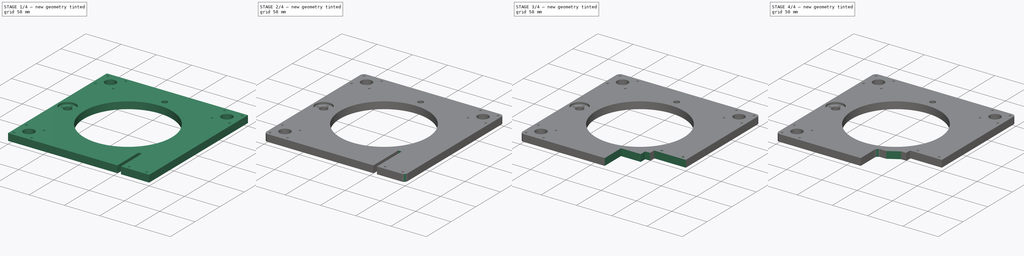
[diagram: build sequence overview — one tinted view per stage of 4, left to right]
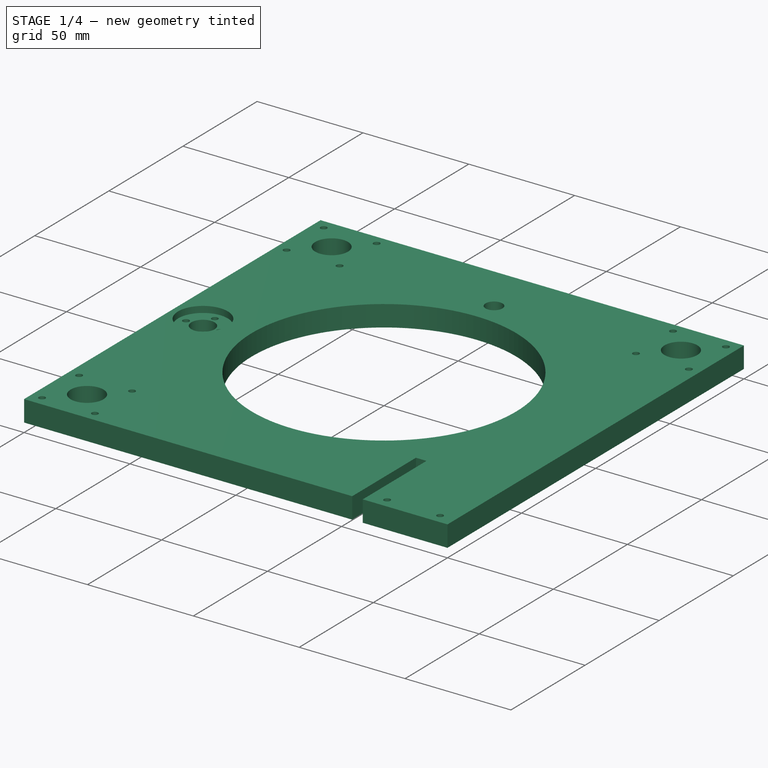
[diagram: stage 1 of 4 — iso view after this stage's code; geometry added in this stage tinted green]
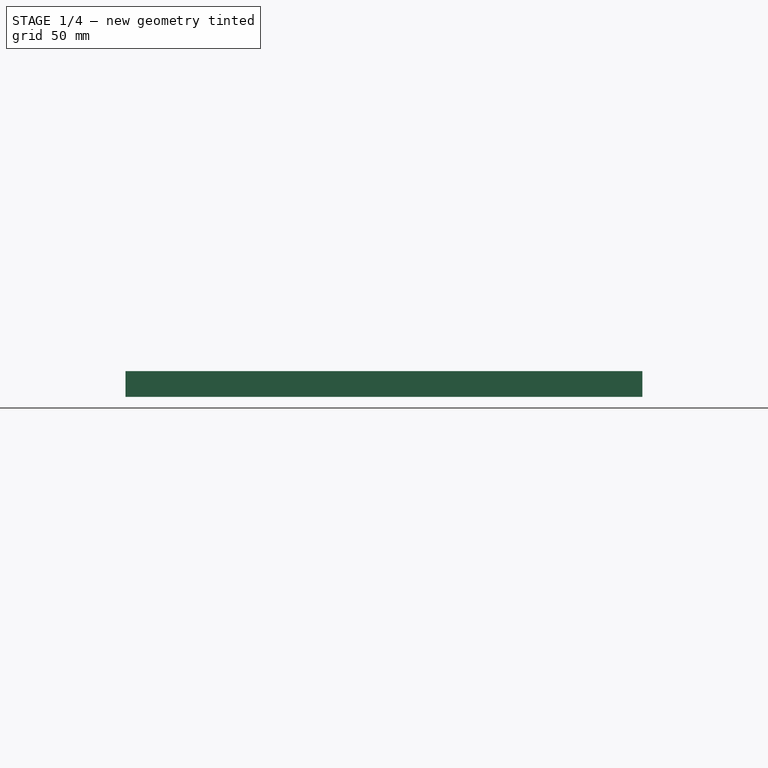
[diagram: stage 1 of 4 — front view after this stage's code; geometry added in this stage tinted green]
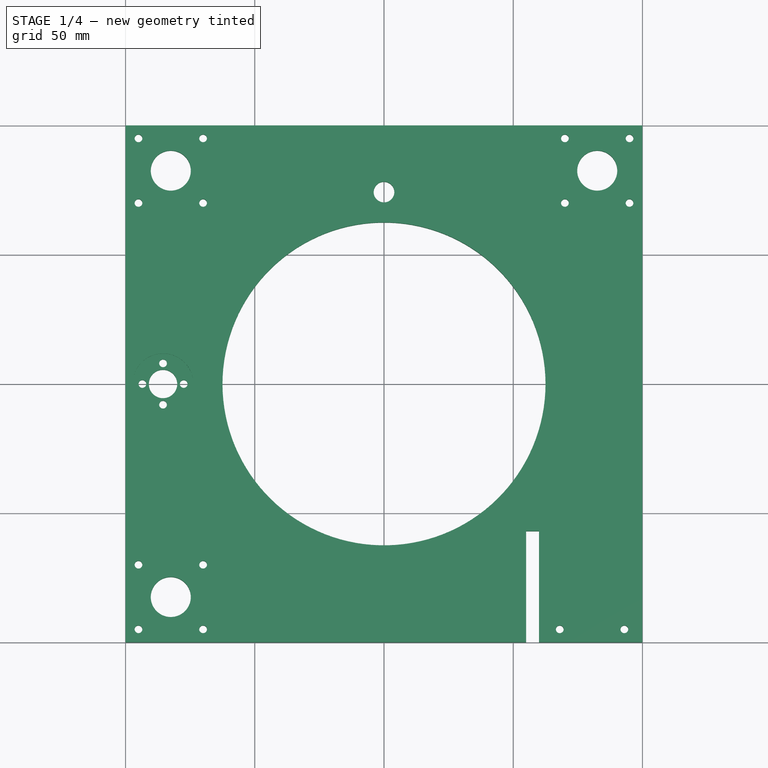
[diagram: stage 1 of 4 — top view after this stage's code; geometry added in this stage tinted green]
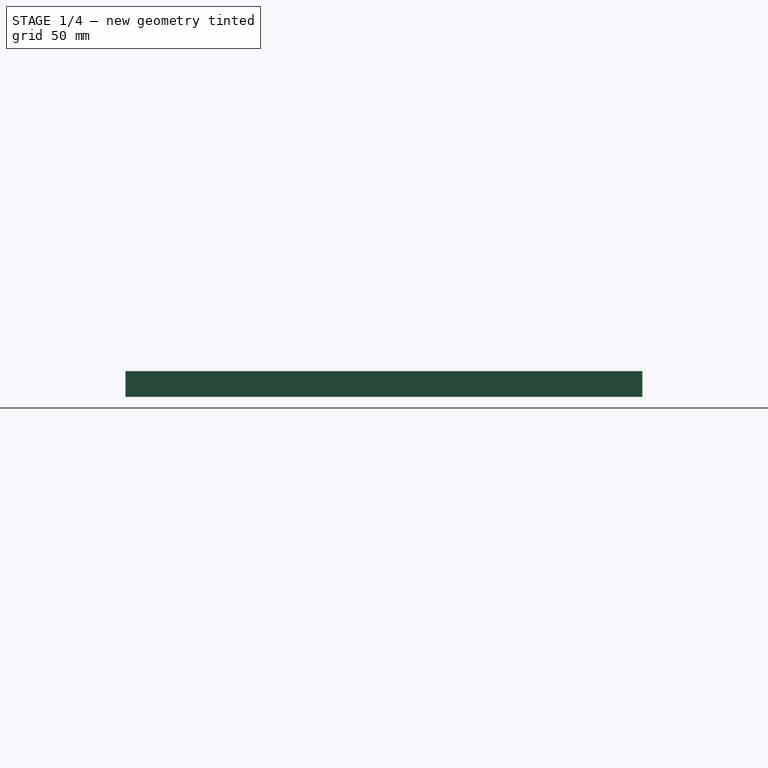
[diagram: stage 1 of 4 — right view after this stage's code; geometry added in this stage tinted green]
FCSTD DOCUMENT  (FreeCAD 1.0R39109 (Git))
Label: bass_on_motor
License: All rights reserved
LicenseURL: https://en.wikipedia.org/wiki/All_rights_reserved
objects: PartDesign::Pocket×5, Sketcher::SketchObject×4, PartDesign::Fillet×2, PartDesign::Pad×1, PartDesign::Chamfer×1, PartDesign::Body×1
note: 36 computed .brp shape members not serialized (recipe doc carries the construction recipe); baked Part::Feature solids carry a one-line shape summary decoded from their .brp

FEATURE [Sketcher::SketchObject] Sketch
  ArcFitTolerance = 1e-06
  AttachmentSupport = -> [XY_Plane]
  FullyConstrained = true
  MakeInternals = false
  MapMode = 5
  sketch-geometry (50):
    g0: LineSegment StartX=-100 StartY=100.02 StartZ=0 EndX=-100 EndY=-99.98 EndZ=0
    g1: LineSegment StartX=-100 StartY=-99.98 StartZ=0 EndX=55 EndY=-99.98 EndZ=0
    g2: LineSegment StartX=100 StartY=-99.98 StartZ=0 EndX=100 EndY=100.02 EndZ=0
    g3: LineSegment StartX=100 StartY=100.02 StartZ=0 EndX=-100 EndY=100.02 EndZ=0
    g4: Circle CenterX=0 CenterY=0 CenterZ=0 NormalX=0 NormalY=0 NormalZ=1 AngleXU=0 Radius=62.5
    g5: LineSegment [constr] StartX=17 StartY=-94.23 StartZ=0 EndX=17 EndY=-62.73 EndZ=0
    g6: LineSegment StartX=60 StartY=-56.98 StartZ=0 EndX=60 EndY=-99.98 EndZ=0
    g7: Circle CenterX=-82.5 CenterY=-82.48 CenterZ=0 NormalX=0 NormalY=0 NormalZ=1 AngleXU=0 Radius=7.75
    g8: LineSegment [constr] StartX=-95 StartY=-69.98 StartZ=0 EndX=-95 EndY=-94.98 EndZ=0
    g9: LineSegment [constr] StartX=-95 StartY=-94.98 StartZ=0 EndX=-70 EndY=-94.98 EndZ=0
    g10: LineSegment [constr] StartX=-70 StartY=-94.98 StartZ=0 EndX=-70 EndY=-69.98 EndZ=0
    g11: LineSegment [constr] StartX=-70 StartY=-69.98 StartZ=0 EndX=-95 EndY=-69.98 EndZ=0
    g12: Circle CenterX=-95 CenterY=-94.98 CenterZ=0 NormalX=0 NormalY=0 NormalZ=1 AngleXU=0 Radius=1.5
    g13: Circle CenterX=-95 CenterY=-69.98 CenterZ=0 NormalX=0 NormalY=0 NormalZ=1 AngleXU=0 Radius=1.5
    g14: Circle CenterX=-70 CenterY=-69.98 CenterZ=0 NormalX=0 NormalY=0 NormalZ=1 AngleXU=0 Radius=1.5
    g15: Circle CenterX=-70 CenterY=-94.98 CenterZ=0 NormalX=0 NormalY=0 NormalZ=1 AngleXU=0 Radius=1.5
    g16: LineSegment [constr] StartX=-95 StartY=95.02 StartZ=0 EndX=-95 EndY=70.02 EndZ=0
    g17: LineSegment [constr] StartX=-95 StartY=70.02 StartZ=0 EndX=-70 EndY=70.02 EndZ=0
    g18: LineSegment [constr] StartX=-70 StartY=70.02 StartZ=0 EndX=-70 EndY=95.02 EndZ=0
    g19: LineSegment [constr] StartX=-70 StartY=95.02 StartZ=0 EndX=-95 EndY=95.02 EndZ=0
    g20: Circle CenterX=-95 CenterY=95.02 CenterZ=0 NormalX=0 NormalY=0 NormalZ=1 AngleXU=0 Radius=1.5
    g21: Circle CenterX=-70 CenterY=95.02 CenterZ=0 NormalX=0 NormalY=0 NormalZ=1 AngleXU=0 Radius=1.5
    g22: Circle CenterX=-70 CenterY=70.02 CenterZ=0 NormalX=0 NormalY=0 NormalZ=1 AngleXU=0 Radius=1.5
    g23: Circle CenterX=-95 CenterY=70.02 CenterZ=0 NormalX=0 NormalY=0 NormalZ=1 AngleXU=0 Radius=1.5
    g24: Circle CenterX=-82.5 CenterY=82.52 CenterZ=0 NormalX=0 NormalY=0 NormalZ=1 AngleXU=0 Radius=7.75
    g25: LineSegment [constr] StartX=70 StartY=95.02 StartZ=0 EndX=70 EndY=70.02 EndZ=0
    g26: LineSegment [constr] StartX=70 StartY=70.02 StartZ=0 EndX=95 EndY=70.02 EndZ=0
    g27: LineSegment [constr] StartX=95 StartY=70.02 StartZ=0 EndX=95 EndY=95.02 EndZ=0
    g28: LineSegment [constr] StartX=95 StartY=95.02 StartZ=0 EndX=70 EndY=95.02 EndZ=0
    g29: Circle CenterX=82.5 CenterY=82.52 CenterZ=0 NormalX=0 NormalY=0 NormalZ=1 AngleXU=0 Radius=7.75
    g30: Circle CenterX=70 CenterY=95.02 CenterZ=0 NormalX=0 NormalY=0 NormalZ=1 AngleXU=0 Radius=1.5
    g31: Circle CenterX=95 CenterY=95.02 CenterZ=0 NormalX=0 NormalY=0 NormalZ=1 AngleXU=0 Radius=1.5
    g32: Circle CenterX=95 CenterY=70.02 CenterZ=0 NormalX=0 NormalY=0 NormalZ=1 AngleXU=0 Radius=1.5
    g33: Circle CenterX=70 CenterY=70.02 CenterZ=0 NormalX=0 NormalY=0 NormalZ=1 AngleXU=0 Radius=1.5
    g34: LineSegment StartX=55 StartY=-56.98 StartZ=0 EndX=55 EndY=-99.98 EndZ=0
    g35: LineSegment StartX=55 StartY=-56.98 StartZ=0 EndX=60 EndY=-56.98 EndZ=0
    g36: LineSegment StartX=60 StartY=-99.98 StartZ=0 EndX=100 EndY=-99.98 EndZ=0
    g37: Circle CenterX=-85.5 CenterY=-8e-15 CenterZ=0 NormalX=0 NormalY=0 NormalZ=1 AngleXU=0 Radius=5.5
    g38: LineSegment [constr] StartX=-107 StartY=21.5 StartZ=0 EndX=-107 EndY=-21.5 EndZ=0
    g39: LineSegment [constr] StartX=-107 StartY=-21.5 StartZ=0 EndX=-64 EndY=-21.5 EndZ=0
    g40: LineSegment [constr] StartX=-64 StartY=-21.5 StartZ=0 EndX=-64 EndY=21.5 EndZ=0
    g41: LineSegment [constr] StartX=-64 StartY=21.5 StartZ=0 EndX=-107 EndY=21.5 EndZ=0
    g42: Circle [constr] CenterX=-85.5 CenterY=-8e-15 CenterZ=0 NormalX=0 NormalY=0 NormalZ=1 AngleXU=0 Radius=8
    g43: Circle CenterX=-85.5 CenterY=8 CenterZ=0 NormalX=0 NormalY=0 NormalZ=1 AngleXU=0 Radius=1.5
    g44: Circle CenterX=-77.5 CenterY=-8e-15 CenterZ=0 NormalX=0 NormalY=0 NormalZ=1 AngleXU=0 Radius=1.5
    g45: Circle CenterX=-85.5 CenterY=-8 CenterZ=0 NormalX=0 NormalY=0 NormalZ=1 AngleXU=0 Radius=1.5
    g46: Circle CenterX=-93.5 CenterY=-8e-15 CenterZ=0 NormalX=0 NormalY=0 NormalZ=1 AngleXU=0 Radius=1.5
    g47: Circle CenterX=0 CenterY=74.23 CenterZ=0 NormalX=0 NormalY=0 NormalZ=1 AngleXU=0 Radius=4
    g48: Circle CenterX=68 CenterY=-94.98 CenterZ=0 NormalX=0 NormalY=0 NormalZ=1 AngleXU=0 Radius=1.5
    g49: Circle CenterX=93 CenterY=-94.98 CenterZ=0 NormalX=0 NormalY=0 NormalZ=1 AngleXU=0 Radius=1.5
  constraints (133):
    c: Coincident(g0,g1)
    c: Coincident(g2,g3)
    c: Coincident(g3,g0)
    c: Vertical(g0)
    c: Vertical(g2)
    c: Horizontal(g1)
    c: Horizontal(g3)
    c: DistanceY(g2,g2) = 200
    c: Diameter(g4) = 125
    c: Coincident(g4,g-1)
    c: Distance(g5) = 31.5
    c: Vertical(g5)
    c: DistanceY(g5,g4) = 94.23
    c: Distance(g5,g-2) = 17
    c: Distance(g6) = 43
    c: Vertical(g6)
    c: DistanceY(g6,g5) = 5.75
    c: DistanceX(g-1,g6) = 60
    c: Diameter(g7) = 15.5
    c: Coincident(g8,g9)
    c: Coincident(g9,g10)
    c: Coincident(g10,g11)
    c: Coincident(g11,g8)
    c: Vertical(g8)
    c: Vertical(g10)
    c: Horizontal(g9)
    c: Horizontal(g11)
    c: Equal(g10,g9)
    c: Symmetric(g8,g9,g7)
    c: Coincident(g12,g8)
    c: Coincident(g13,g8)
    c: Coincident(g14,g10)
    c: Coincident(g15,g9)
    c: Equal(g12,g13)
    c: Equal(g13,g14)
    c: Equal(g14,g15)
    c: Diameter(g15) = 3
    c: DistanceY(g0,g8) = 5
    c: Distance(g8,g0) = 5
    c: DistanceX(g11,g11) = 25
    c: Coincident(g16,g17)
    c: Coincident(g17,g18)
    c: Coincident(g18,g19)
    c: Coincident(g19,g16)
    c: Vertical(g16)
    c: Vertical(g18)
    c: Horizontal(g17)
    c: Horizontal(g19)
    c: Coincident(g20,g16)
    c: Coincident(g21,g18)
    c: Coincident(g22,g17)
    c: Coincident(g23,g16)
    c: Equal(g20,g21)
    c: Equal(g21,g22)
    c: Equal(g22,g23)
    c: Symmetric(g16,g17,g24)
    c: Equal(g18,g17)
    c: DistanceY(g16,g0) = 5
    c: DistanceX(g0,g16) = 5
    c: DistanceX(g19,g19) = 25
    c: Equal(g23,g13)
    c: Equal(g7,g24)
    c: Coincident(g25,g26)
    c: Coincident(g26,g27)
    c: Coincident(g27,g28)
    c: Coincident(g28,g25)
    c: Vertical(g25)
    c: Vertical(g27)
    c: Horizontal(g26)
    c: Horizontal(g28)
    c: Coincident(g30,g25)
    c: Coincident(g31,g27)
    c: Coincident(g32,g26)
    c: Coincident(g33,g25)
    c: Equal(g33,g30)
    c: Equal(g30,g31)
    c: Equal(g31,g32)
    c: Symmetric(g25,g26,g29)
    c: Equal(g25,g28)
    c: Equal(g28,g19)
    c: Equal(g24,g29)
    c: Equal(g30,g21)
    c: DistanceY(g27,g2) = 5
    c: DistanceX(g27,g2) = 5
    c: Vertical(g34)
    c: Coincident(g35,g34)
    c: Coincident(g35,g6)
    c: Horizontal(g35)
    c: DistanceX(g35,g35) = 5
    c: Coincident(g1,g34)
    c: Coincident(g36,g6)
    c: Coincident(g36,g2)
    c: Horizontal(g36)
    c: Equal(g3,g0)
    c: Horizontal(g1,g6)
    c: DistanceX(g0,g-1) = 100
    c: Diameter(g37) = 11
    c: Coincident(g38,g39)
    c: Coincident(g39,g40)
    c: Coincident(g40,g41)
    c: Coincident(g41,g38)
    c: Vertical(g38)
    c: Vertical(g40)
    c: Horizontal(g39)
    c: Horizontal(g41)
    c: Equal(g39,g40)
    c: DistanceY(g40,g40) = 43
    c: Symmetric(g39,g38,g37)
    c: DistanceY(g-1,g40) = 21.5
    c: DistanceX(g40,g-1) = 64
    c: Diameter(g42) = 16
    c: Coincident(g42,g37)
    c: PointOnObject(g43,g42)
    c: PointOnObject(g44,g42)
    c: PointOnObject(g45,g42)
    c: PointOnObject(g46,g42)
    c: Horizontal(g46,g44)
    c: Horizontal(g44,g37)
    c: Vertical(g37,g43)
    c: Vertical(g43,g45)
    c: Diameter(g45) = 3
    c: Equal(g45,g44)
    c: Equal(g44,g43)
    c: Equal(g43,g46)
    c: PointOnObject(g47,g-2)
    c: DistanceY(g-1,g47) = 74.23
    c: Diameter(g47) = 8
    c: Horizontal(g48,g49)
    c: Equal(g48,g49)
    c: DistanceX(g48,g49) = 25
    c: Diameter(g49) = 3
    c: DistanceY(g2,g49) = 5
    c: DistanceX(g49,g2) = 7
FEATURE [PartDesign::Pad] Pad
  Direction = (0,0,1)
  Length = 10
  Length2 = 10
  Profile = -> Sketch
  ReferenceAxis = -> Sketch [N_Axis]
  Refine = true
  Suppressed = false
  Type = 0
FEATURE [Sketcher::SketchObject] Sketch001
  ArcFitTolerance = 1e-06
  AttachmentSupport = -> [Pad]
  FullyConstrained = true
  MakeInternals = false
  MapMode = 5
  Placement = pos=(0,0,10) rot=(0,0,1;0rad)
  sketch-geometry (2):
    g0: Circle [constr] CenterX=-85.5 CenterY=0 CenterZ=0 NormalX=0 NormalY=0 NormalZ=1 AngleXU=0 Radius=5.5
    g1: Circle CenterX=-85.5 CenterY=0 CenterZ=0 NormalX=0 NormalY=0 NormalZ=1 AngleXU=0 Radius=11.75
  constraints (5):
    c: PointOnObject(g0,g-1)
    c: Diameter(g0) = 11
    c: DistanceX(g0,g-1) = 85.5
    c: Coincident(g1,g0)
    c: Diameter(g1) = 23.5
FEATURE [PartDesign::Pocket] Pocket
  BaseFeature = -> Pad
  Direction = (0,0,-1)
  Length = 3
  Length2 = 5
  Profile = -> Sketch001
  ReferenceAxis = -> Sketch001 [N_Axis]
  Refine = true
  Suppressed = false
  Type = 0
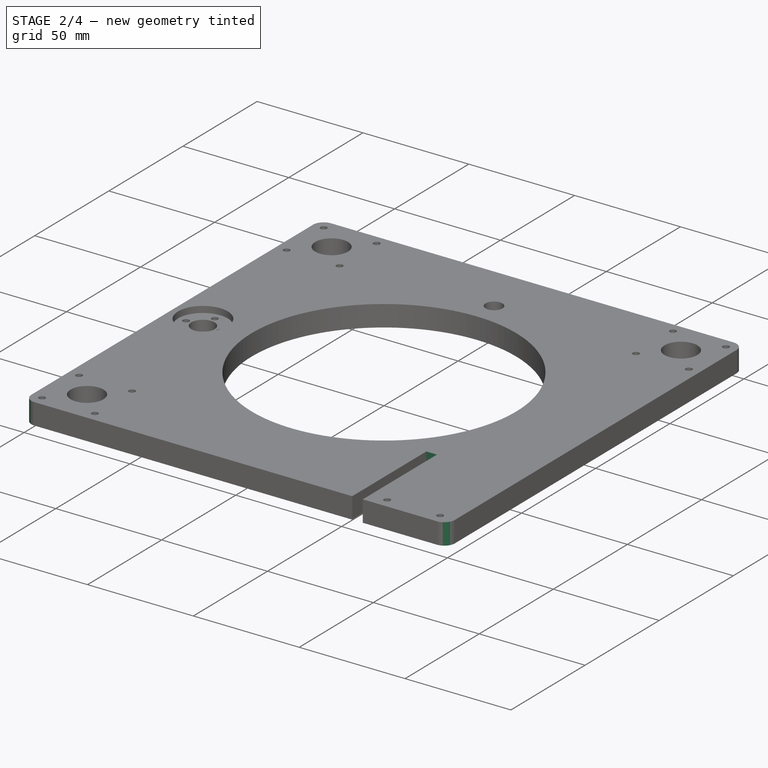
[diagram: stage 2 of 4 — iso view after this stage's code; geometry added in this stage tinted green]
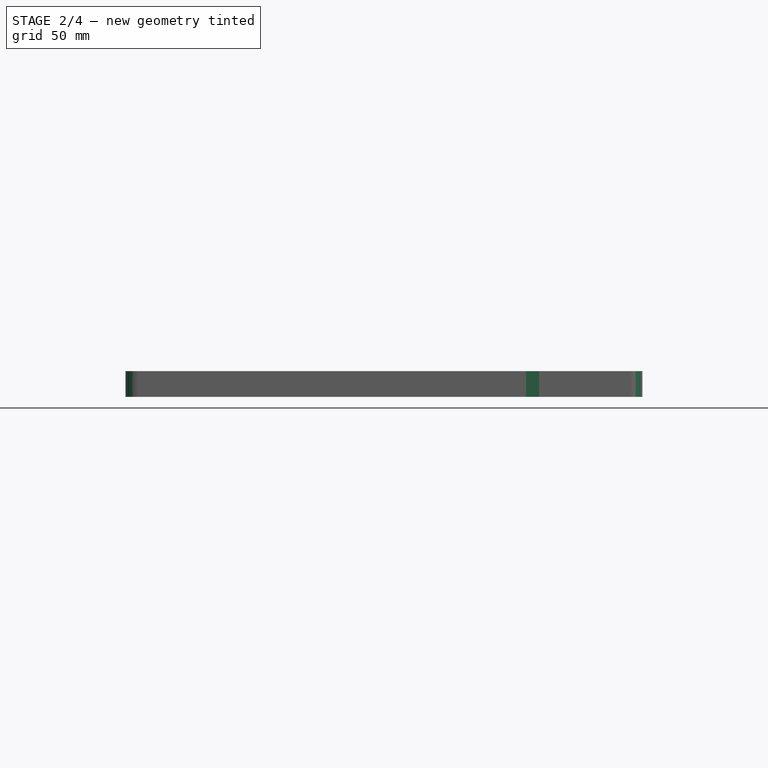
[diagram: stage 2 of 4 — front view after this stage's code; geometry added in this stage tinted green]
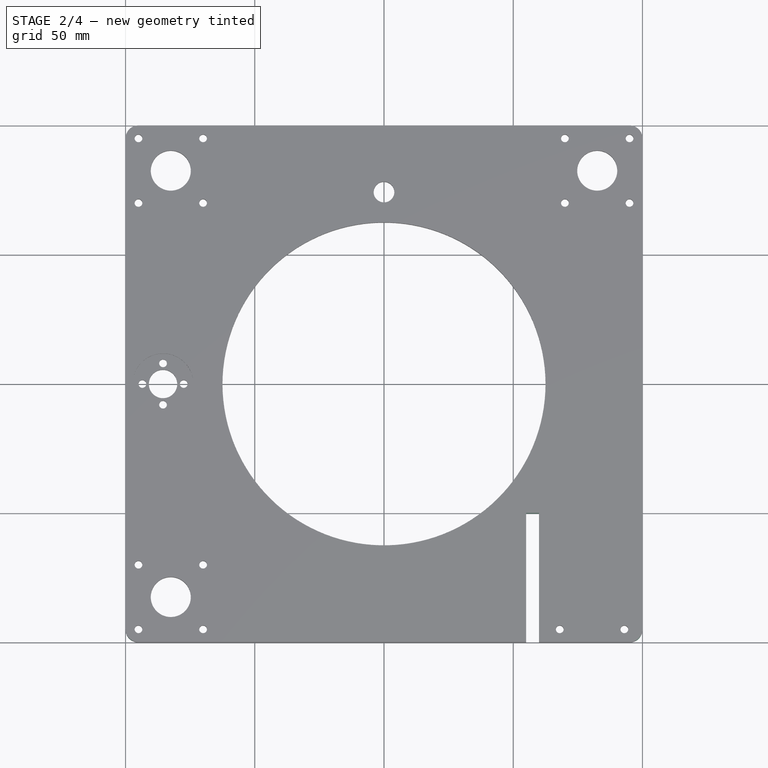
[diagram: stage 2 of 4 — top view after this stage's code; geometry added in this stage tinted green]
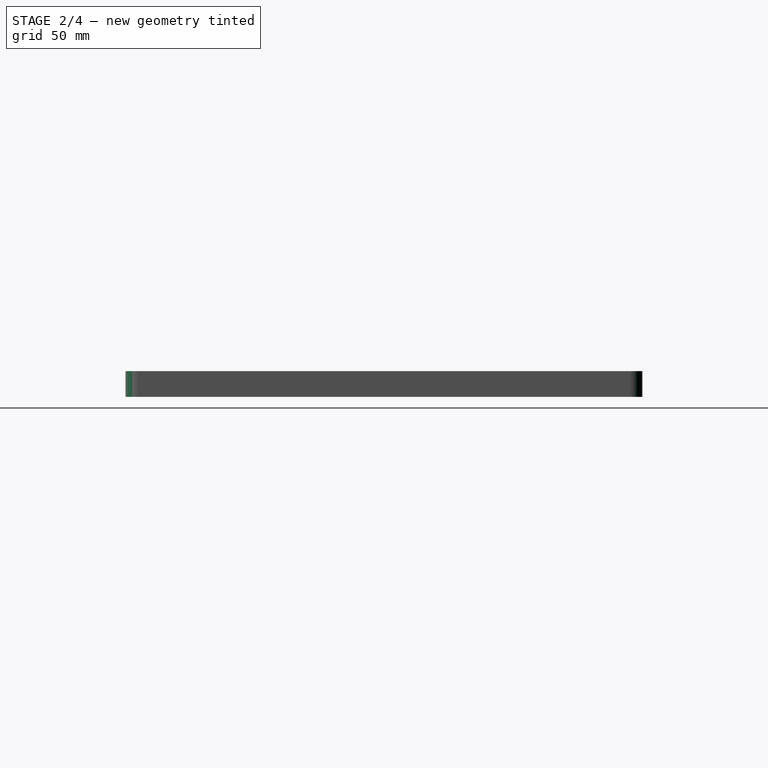
[diagram: stage 2 of 4 — right view after this stage's code; geometry added in this stage tinted green]
FEATURE [PartDesign::Fillet] Fillet
  Base = -> Pocket [Edge65,Edge68,Edge67,Edge66]
  BaseFeature = -> Pocket
  Radius = 5
  Refine = true
  SupportTransform = false
  Suppressed = false
  UseAllEdges = false
FEATURE [PartDesign::Pocket] Pocket001
  BaseFeature = -> Fillet
  Direction = (0,1,0)
  Length = 7
  Length2 = 5
  Profile = -> Fillet [Face6]
  Refine = true
  Suppressed = false
  Type = 0
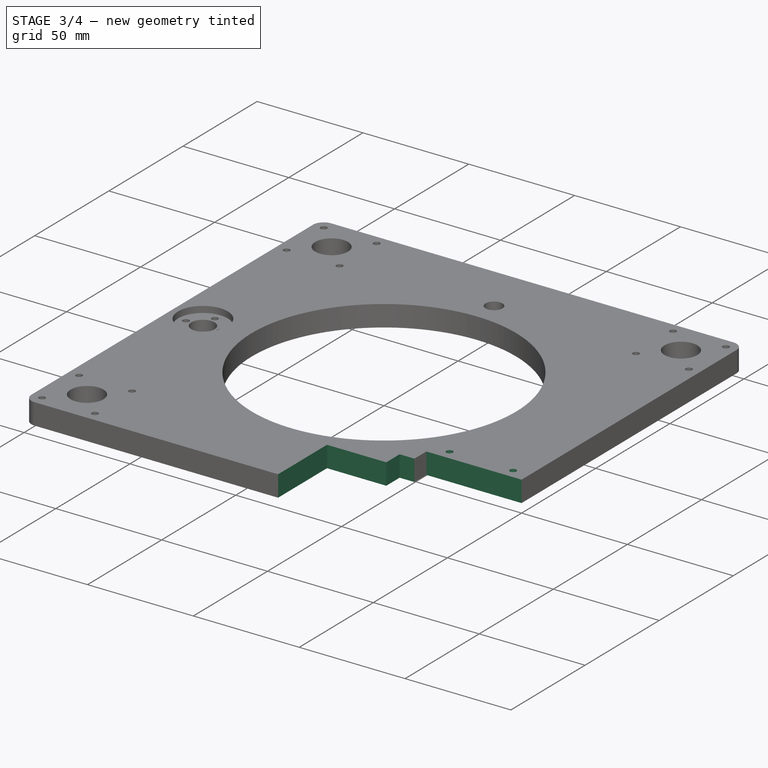
[diagram: stage 3 of 4 — iso view after this stage's code; geometry added in this stage tinted green]
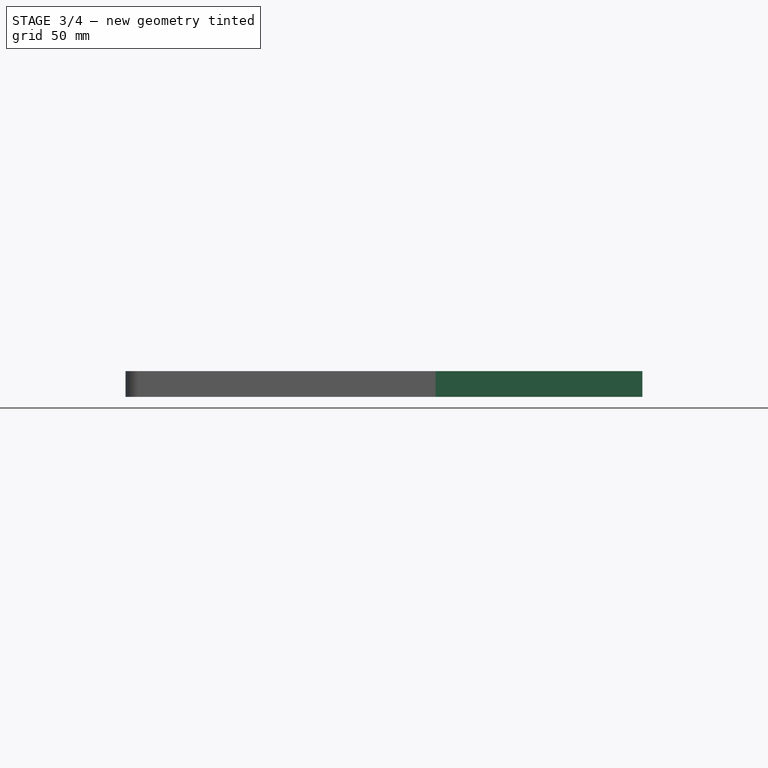
[diagram: stage 3 of 4 — front view after this stage's code; geometry added in this stage tinted green]
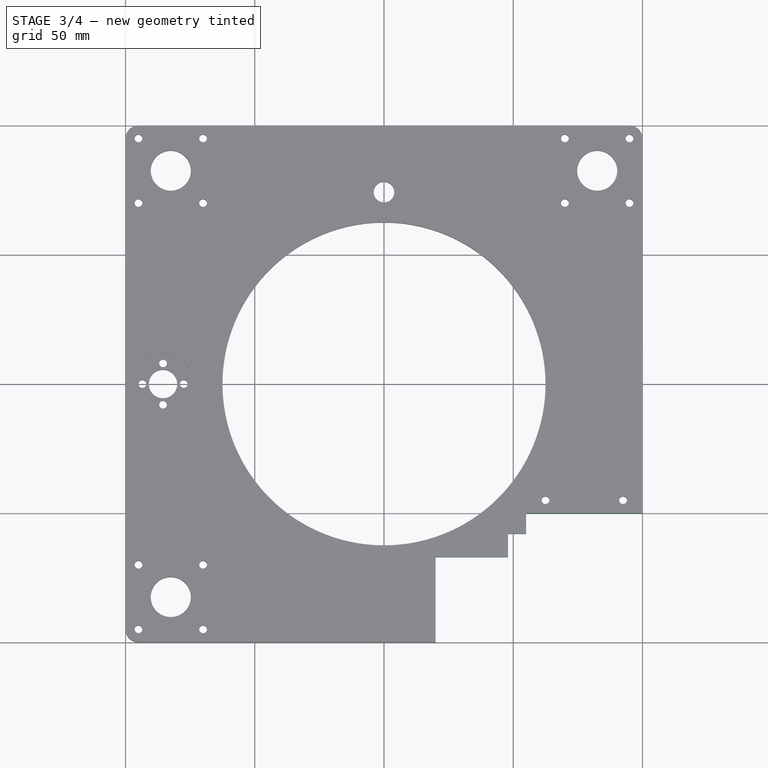
[diagram: stage 3 of 4 — top view after this stage's code; geometry added in this stage tinted green]
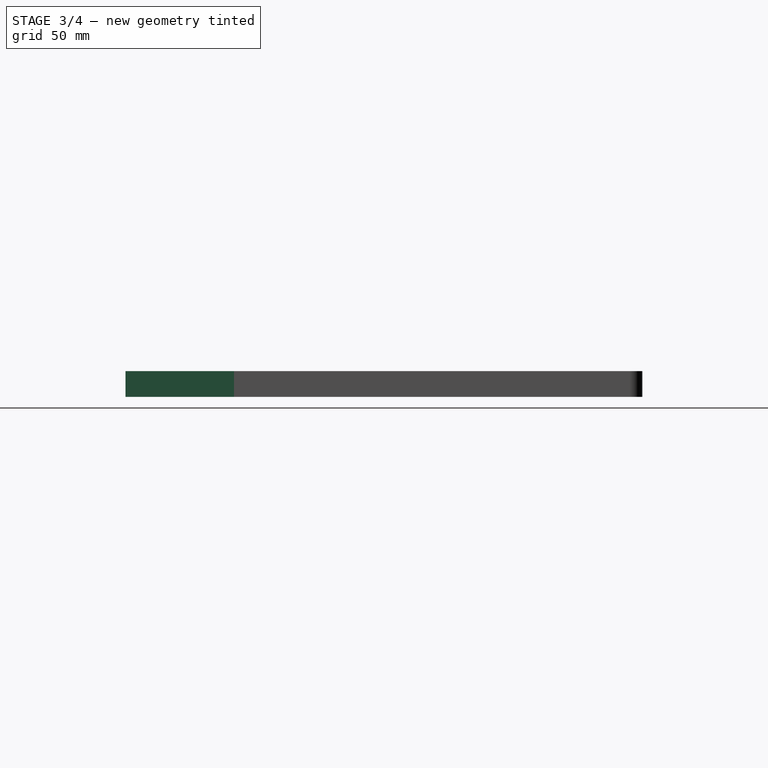
[diagram: stage 3 of 4 — right view after this stage's code; geometry added in this stage tinted green]
FEATURE [PartDesign::Pocket] Pocket002
  BaseFeature = -> Pocket001
  Direction = (1,0,0)
  Length = 5
  Length2 = 5
  Profile = -> Pocket001 [Face39]
  Refine = true
  Suppressed = false
  Type = 1
FEATURE [Sketcher::SketchObject] Sketch002
  ArcFitTolerance = 1e-06
  AttachmentSupport = -> [Pocket002]
  FullyConstrained = true
  MakeInternals = false
  MapMode = 5
  Placement = pos=(0,0,10) rot=(0,0,1;0rad)
  sketch-geometry (3):
    g0: Circle CenterX=62.5 CenterY=-45 CenterZ=0 NormalX=0 NormalY=0 NormalZ=1 AngleXU=0 Radius=1.5
    g1: Circle CenterX=92.5 CenterY=-45 CenterZ=0 NormalX=0 NormalY=0 NormalZ=1 AngleXU=0 Radius=1.5
    g2: LineSegment [constr] StartX=55 StartY=0 StartZ=0 EndX=55 EndY=-50 EndZ=0
  constraints (10):
    c: Equal(g1,g0)
    c: Horizontal(g0,g1)
    c: DistanceX(g0,g1) = 30
    c: Diameter(g0) = 3
    c: PointOnObject(g2,g-1)
    c: Vertical(g2)
    c: DistanceY(g2,g2) = 50
    c: DistanceX(g-1,g2) = 55
    c: DistanceX(g2,g0) = 7.5
    c: DistanceY(g2,g0) = 5
FEATURE [PartDesign::Pocket] Pocket003
  BaseFeature = -> Pocket002
  Direction = (0,0,-1)
  Length = 5
  Length2 = 5
  Profile = -> Sketch002
  ReferenceAxis = -> Sketch002 [N_Axis]
  Refine = true
  Suppressed = false
  Type = 1
FEATURE [Sketcher::SketchObject] Sketch003
  ArcFitTolerance = 1e-06
  AttachmentSupport = -> [Pocket003]
  FullyConstrained = true
  MakeInternals = false
  MapMode = 5
  Placement = pos=(0,0,10) rot=(0,0,1;0rad)
  sketch-geometry (10):
    g0: LineSegment StartX=55 StartY=-58 StartZ=0 EndX=48 EndY=-58 EndZ=0
    g1: LineSegment StartX=48 StartY=-58 StartZ=0 EndX=48 EndY=-67 EndZ=0
    g2: LineSegment StartX=48 StartY=-67 StartZ=0 EndX=20 EndY=-67 EndZ=0
    g3: LineSegment StartX=20 StartY=-67 StartZ=0 EndX=20 EndY=-100 EndZ=0
    g4: LineSegment StartX=20 StartY=-100 StartZ=0 EndX=55 EndY=-100 EndZ=0
    g5: LineSegment StartX=55 StartY=-100 StartZ=0 EndX=55 EndY=-58 EndZ=0
    g6: LineSegment [constr] StartX=55 StartY=-58 StartZ=0 EndX=55 EndY=-50 EndZ=0
    g7: LineSegment [constr] StartX=55 StartY=-50 StartZ=0 EndX=100 EndY=-50 EndZ=0
    g8: Circle [constr] CenterX=62.5 CenterY=-45 CenterZ=0 NormalX=0 NormalY=0 NormalZ=1 AngleXU=0 Radius=1.5
    g9: Circle [constr] CenterX=92.5 CenterY=-45 CenterZ=0 NormalX=0 NormalY=0 NormalZ=1 AngleXU=0 Radius=1.5
  constraints (30):
    c: Horizontal(g0)
    c: Coincident(g0,g1)
    c: Coincident(g1,g2)
    c: Horizontal(g2)
    c: Coincident(g2,g3)
    c: Vertical(g3)
    c: Coincident(g3,g4)
    c: Horizontal(g4)
    c: Coincident(g4,g5)
    c: Coincident(g5,g0)
    c: Vertical(g5)
    c: Vertical(g1)
    c: DistanceX(g0,g0) = 7
    c: DistanceX(g-1,g0) = 55
    c: DistanceY(g3,g3) = 33
    c: DistanceY(g5,g5) = 42
    c: DistanceY(g4,g-1) = 100
    c: Coincident(g0,g6)
    c: Vertical(g6)
    c: Coincident(g6,g7)
    c: Horizontal(g7)
    c: DistanceY(g6,g6) = 8
    c: DistanceX(g7,g7) = 45
    c: DistanceX(g2,g2) = 28
    c: Horizontal(g8,g9)
    c: DistanceX(g8,g9) = 30
    c: DistanceX(g9,g7) = 7.5
    c: Diameter(g9) = 3
    c: Equal(g8,g9)
    c: DistanceY(g7,g9) = 5
FEATURE [PartDesign::Pocket] Pocket004
  BaseFeature = -> Pocket003
  Direction = (0,0,-1)
  Length = 5
  Length2 = 5
  Profile = -> Sketch003
  ReferenceAxis = -> Sketch003 [N_Axis]
  Refine = true
  Suppressed = false
  Type = 1
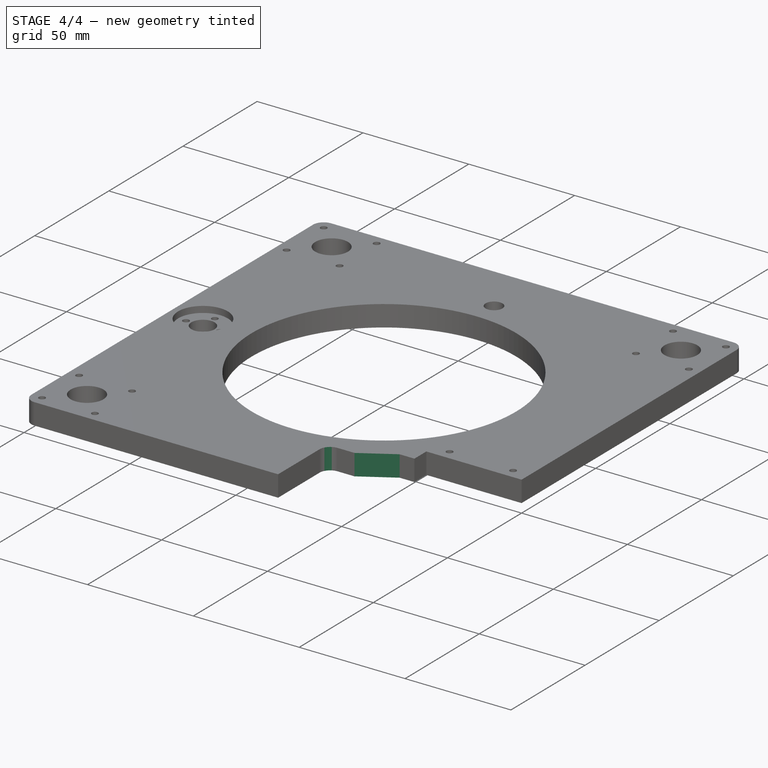
[diagram: stage 4 of 4 — iso view after this stage's code; geometry added in this stage tinted green]
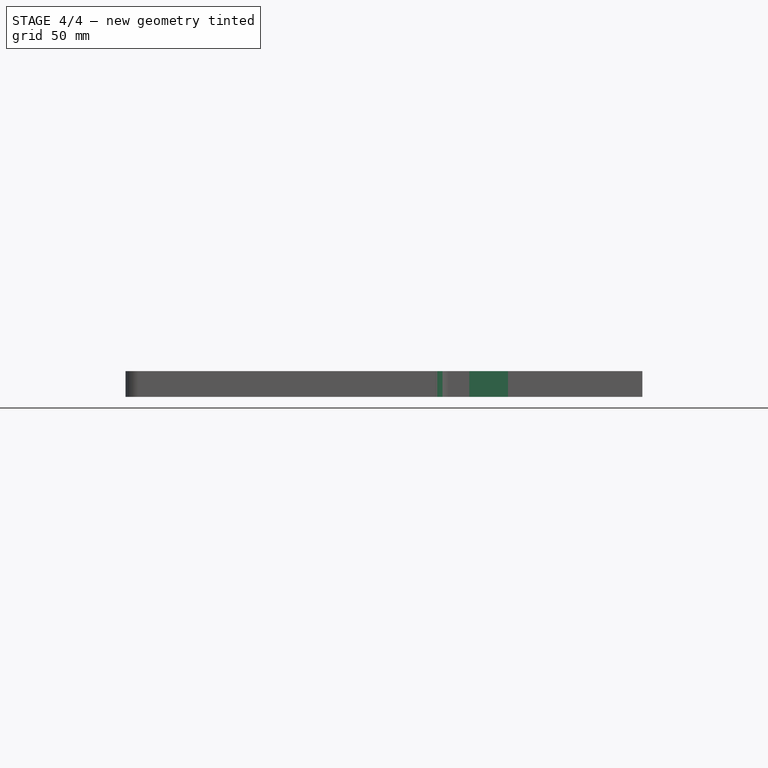
[diagram: stage 4 of 4 — front view after this stage's code; geometry added in this stage tinted green]
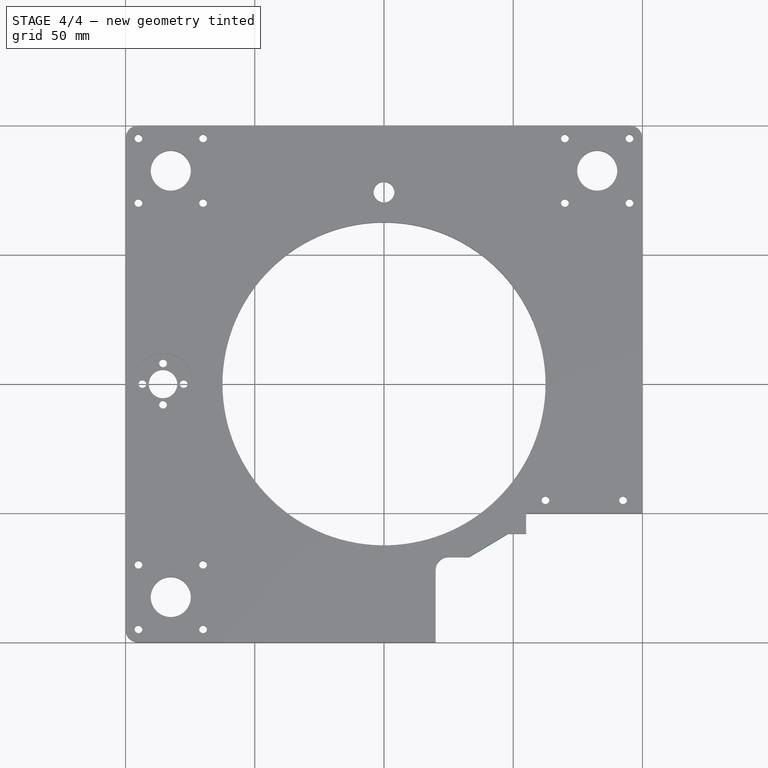
[diagram: stage 4 of 4 — top view after this stage's code; geometry added in this stage tinted green]
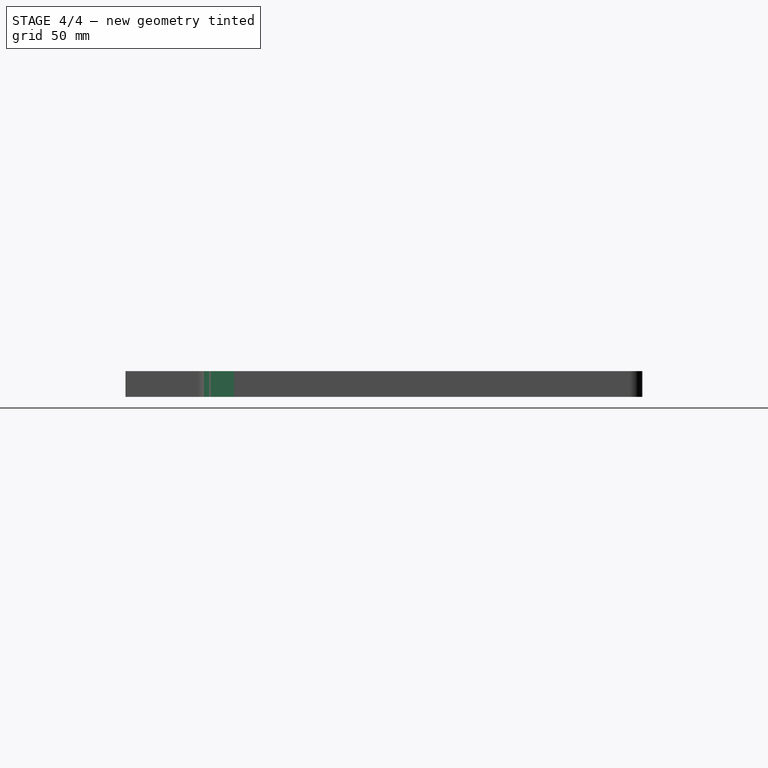
[diagram: stage 4 of 4 — right view after this stage's code; geometry added in this stage tinted green]
FEATURE [PartDesign::Chamfer] Chamfer
  Angle = 45
  Base = -> Pocket004 [Edge42]
  BaseFeature = -> Pocket004
  ChamferType = 1
  FlipDirection = false
  Refine = true
  Size = 8.99
  Size2 = 15
  SupportTransform = false
  Suppressed = false
  UseAllEdges = false
FEATURE [PartDesign::Fillet] Fillet001
  Base = -> Chamfer [Edge47]
  BaseFeature = -> Chamfer
  Radius = 5
  Refine = true
  SupportTransform = false
  Suppressed = false
  UseAllEdges = false
FEATURE [PartDesign::Body] Body
  AllowCompound = false
  Group = -> [Sketch,Pad,Sketch001,Pocket,Fillet,Pocket001,Pocket002,Sketch002,Pocket003,Sketch003,Pocket004,Chamfer,Fillet001]
  Origin = -> Origin
  Tip = -> Fillet001
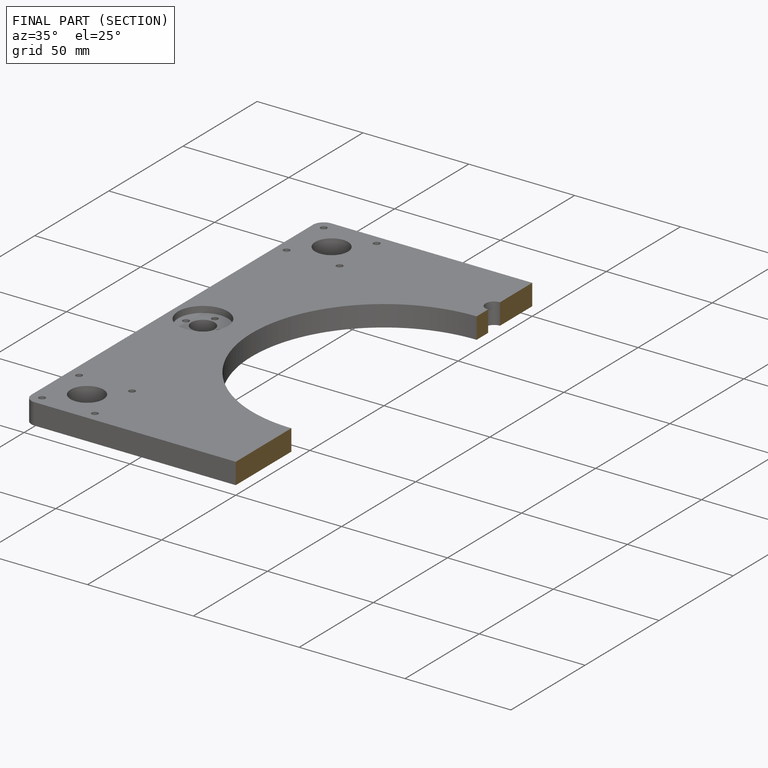
[diagram: finished part — half-section view (interior)]
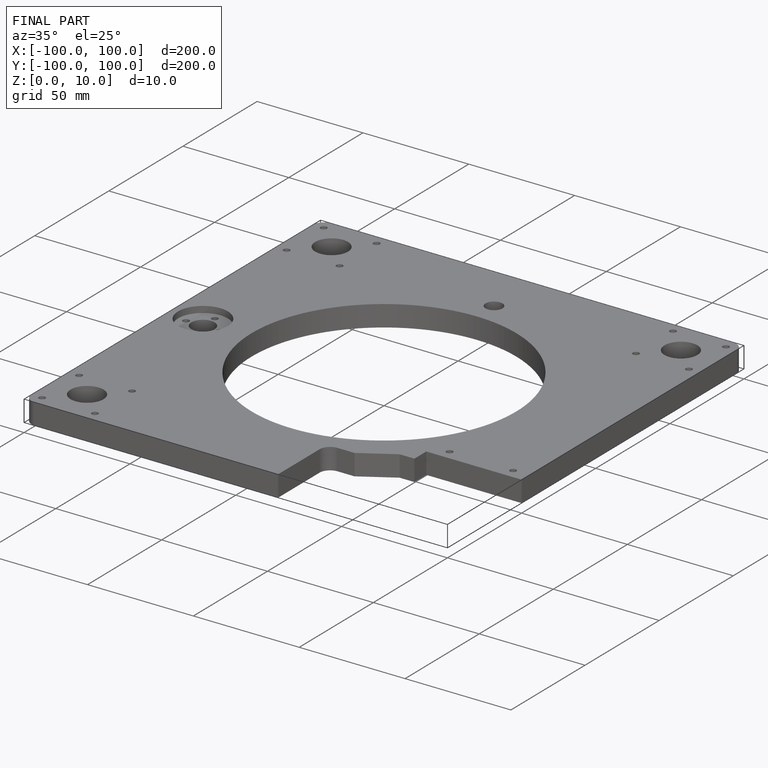
[diagram: finished part — iso view with bounding-box wireframe]
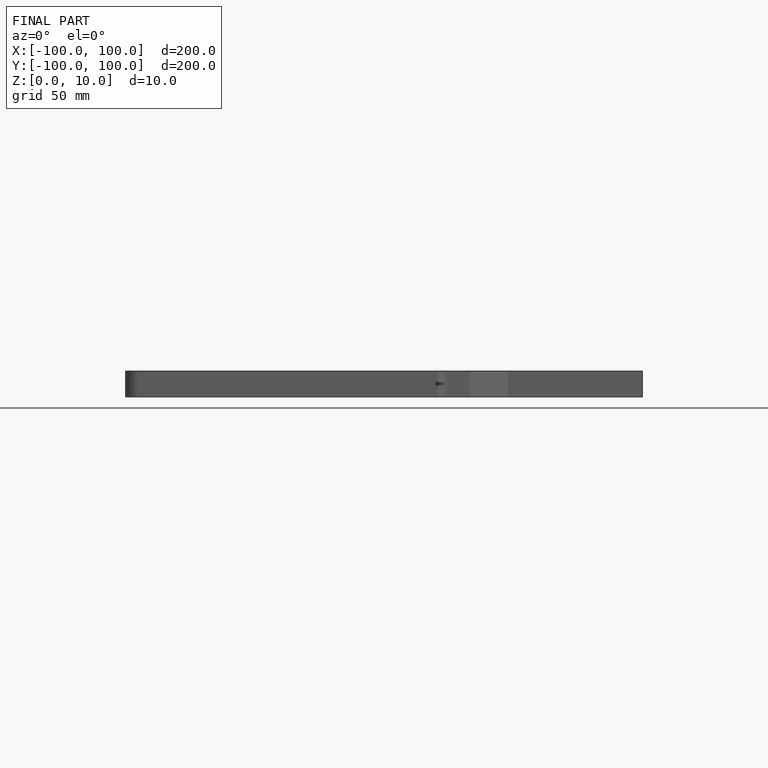
[diagram: finished part — front view with bounding-box wireframe]
